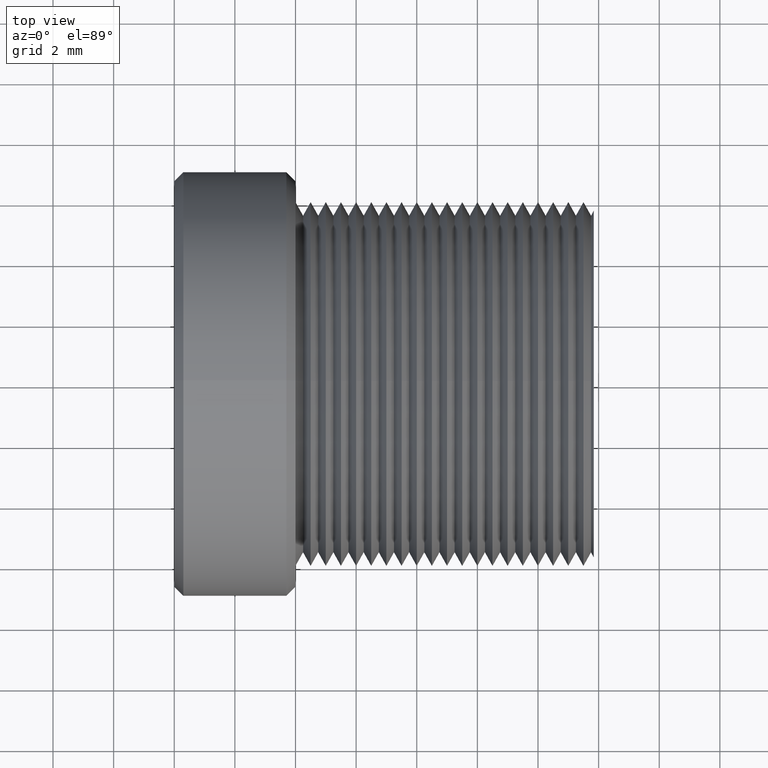
[diagram: clean part render]
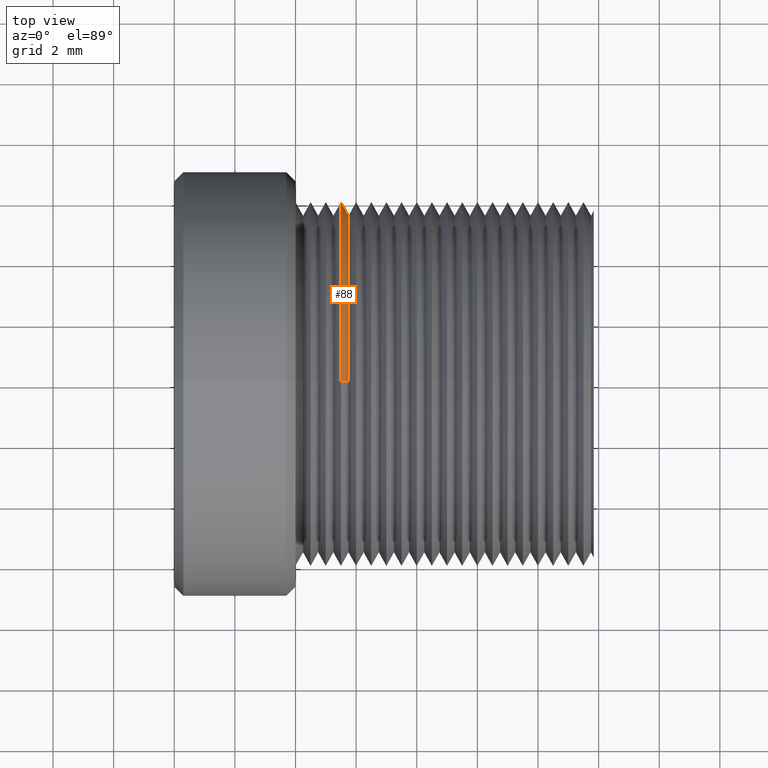
[diagram: same view with one face highlighted and labeled with its STEP entity id]
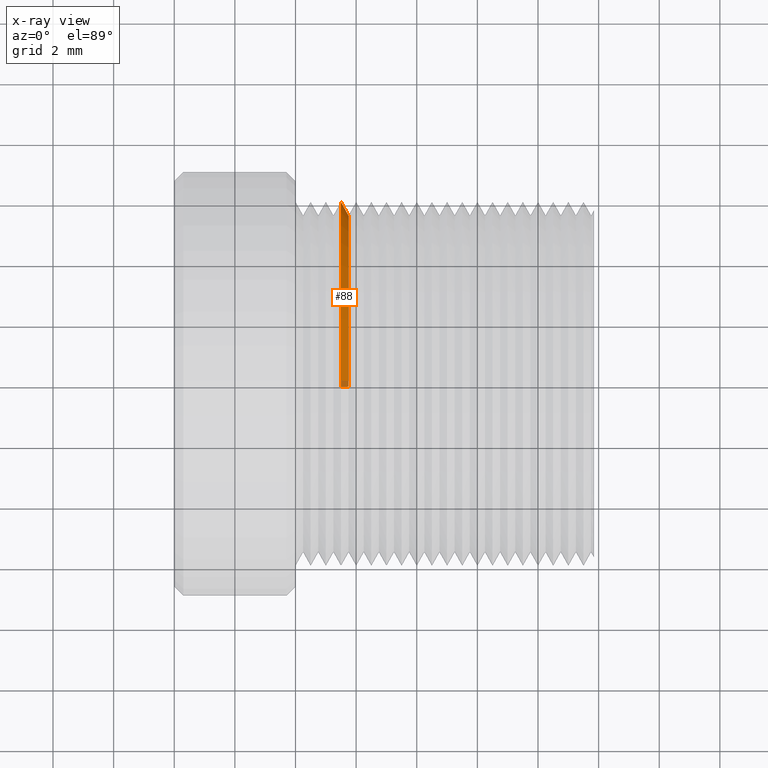
[diagram: x-ray of the same camera — body ghosted, the highlighted face saturated]
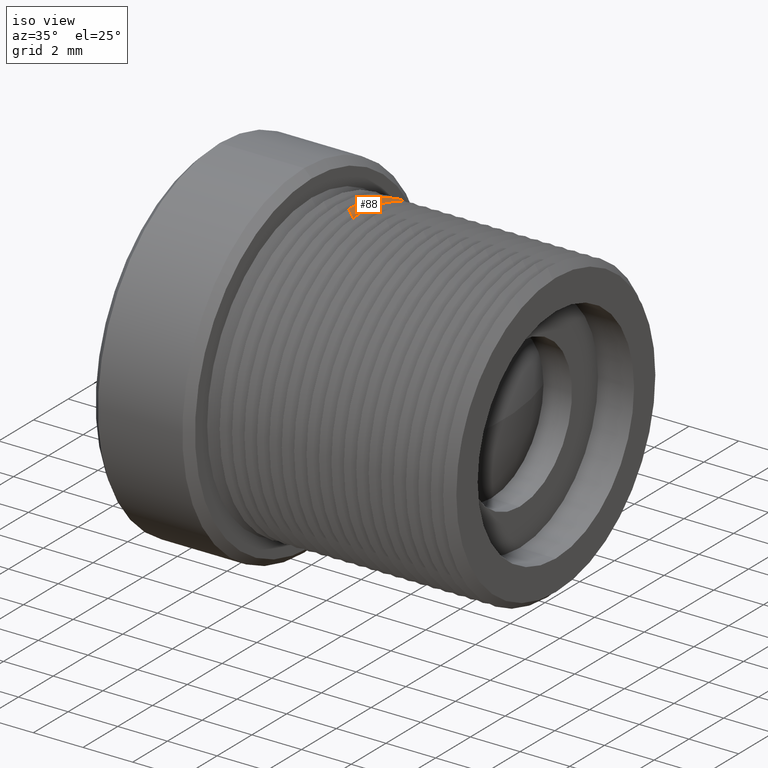
[diagram: same view with one face highlighted and labeled with its STEP entity id]
A machine part, top view. The second image highlights one B-rep face of the part: STEP entity #88.
The next image is the same camera in x-ray: the body ghosted, the highlighted face saturated — about 3% of this face is hidden behind the body in this view.
A second angle (iso view) of the same face is appended — the face is thin or edge-on in the first view.
In plain terms, the highlighted conical surface has half-angle 60 deg.
Its self-contained STEP definition (entity closure, byte-faithful):
#22 = ORIENTED_EDGE ( 'NONE', *, *, #1111, .T. ) ;
#88 = ADVANCED_FACE ( 'NONE', ( #1109 ), #2058, .T. ) ;
#508 = VERTEX_POINT ( 'NONE', #729 ) ;
#530 = CARTESIAN_POINT ( 'NONE',  ( -2.499999999999944933, -0.001416594918479673797, 5.999999832771570674 ) ) ;
#618 = EDGE_LOOP ( 'NONE', ( #22, #2437, #1025, #1397 ) ) ;
#713 = CARTESIAN_POINT ( 'NONE',  ( -2.250000000000084821, 0.001314360986715001900, -5.566987142948139677 ) ) ;
#729 = CARTESIAN_POINT ( 'NONE',  ( -2.499999999999944933, 0.001416594918923763874, -5.999999832771570674 ) ) ;
#771 = EDGE_CURVE ( 'NONE', #818, #508, #2496, .T. ) ;
#777 = DIRECTION ( 'NONE',  ( 0.000000000000000000, -0.0002360991531231235868, 0.9999999721285944831 ) ) ;
#818 = VERTEX_POINT ( 'NONE', #713 ) ;
#819 = EDGE_CURVE ( 'NONE', #1563, #945, #1907, .T. ) ;
#945 = VERTEX_POINT ( 'NONE', #530 ) ;
#1008 = AXIS2_PLACEMENT_3D ( 'NONE', #2583, #1583, #777 ) ;
#1025 = ORIENTED_EDGE ( 'NONE', *, *, #2351, .F. ) ;
#1072 = CARTESIAN_POINT ( 'NONE',  ( -2.250000000000084821, 0.001314360986715001900, -5.566987142948139677 ) ) ;
#1109 = FACE_OUTER_BOUND ( 'NONE', #618, .T. ) ;
#1111 = EDGE_CURVE ( 'NONE', #1563, #818, #1307, .T. ) ;
#1117 = DIRECTION ( 'NONE',  ( -0.4999999999998861466, -0.0002044678644166325447, 0.8660253796471591992 ) ) ;
#1122 = AXIS2_PLACEMENT_3D ( 'NONE', #1921, #1315, #1490 ) ;
#1307 = CIRCLE ( 'NONE', #2319, 5.566987298107897608 ) ;
#1315 = DIRECTION ( 'NONE',  ( -1.000000000000000000, 0.000000000000000000, 0.000000000000000000 ) ) ;
#1362 = CARTESIAN_POINT ( 'NONE',  ( -2.250000000000084821, -0.001314360986270912040, 5.566987142948139677 ) ) ;
#1397 = ORIENTED_EDGE ( 'NONE', *, *, #819, .F. ) ;
#1490 = DIRECTION ( 'NONE',  ( 0.000000000000000000, -0.0002360991531231235868, 0.9999999721285945942 ) ) ;
#1563 = VERTEX_POINT ( 'NONE', #1362 ) ;
#1568 = VECTOR ( 'NONE', #1117, 1000.000000000000114 ) ;
#1574 = CARTESIAN_POINT ( 'NONE',  ( -2.250000000000084821, 2.220446049250315100E-13, 5.421010862427519705E-17 ) ) ;
#1583 = DIRECTION ( 'NONE',  ( -1.000000000000000000, 0.000000000000000000, 0.000000000000000000 ) ) ;
#1782 = DIRECTION ( 'NONE',  ( 0.000000000000000000, -0.0002360991531231235868, 0.9999999721285945942 ) ) ;
#1907 = LINE ( 'NONE', #1918, #1568 ) ;
#1918 = CARTESIAN_POINT ( 'NONE',  ( -2.250000000000084821, -0.001314360986270912040, 5.566987142948139677 ) ) ;
#1921 = CARTESIAN_POINT ( 'NONE',  ( -2.250000000000084821, 2.220446049250315100E-13, 5.421010862427519705E-17 ) ) ;
#2058 = CONICAL_SURFACE ( 'NONE', #1122, 5.566987298107897608, 1.047197551196729082 ) ;
#2147 = CIRCLE ( 'NONE', #1008, 5.999999999999997335 ) ;
#2168 = DIRECTION ( 'NONE',  ( -1.000000000000000000, 0.000000000000000000, 0.000000000000000000 ) ) ;
#2272 = DIRECTION ( 'NONE',  ( -0.4999999999998861466, 0.0002044678644167385526, -0.8660253796471591992 ) ) ;
#2319 = AXIS2_PLACEMENT_3D ( 'NONE', #1574, #2168, #1782 ) ;
#2351 = EDGE_CURVE ( 'NONE', #945, #508, #2147, .T. ) ;
#2437 = ORIENTED_EDGE ( 'NONE', *, *, #771, .T. ) ;
#2496 = LINE ( 'NONE', #1072, #2600 ) ;
#2583 = CARTESIAN_POINT ( 'NONE',  ( -2.499999999999944933, 2.220446049250315100E-13, 5.421010862427519705E-17 ) ) ;
#2600 = VECTOR ( 'NONE', #2272, 1000.000000000000114 ) ;